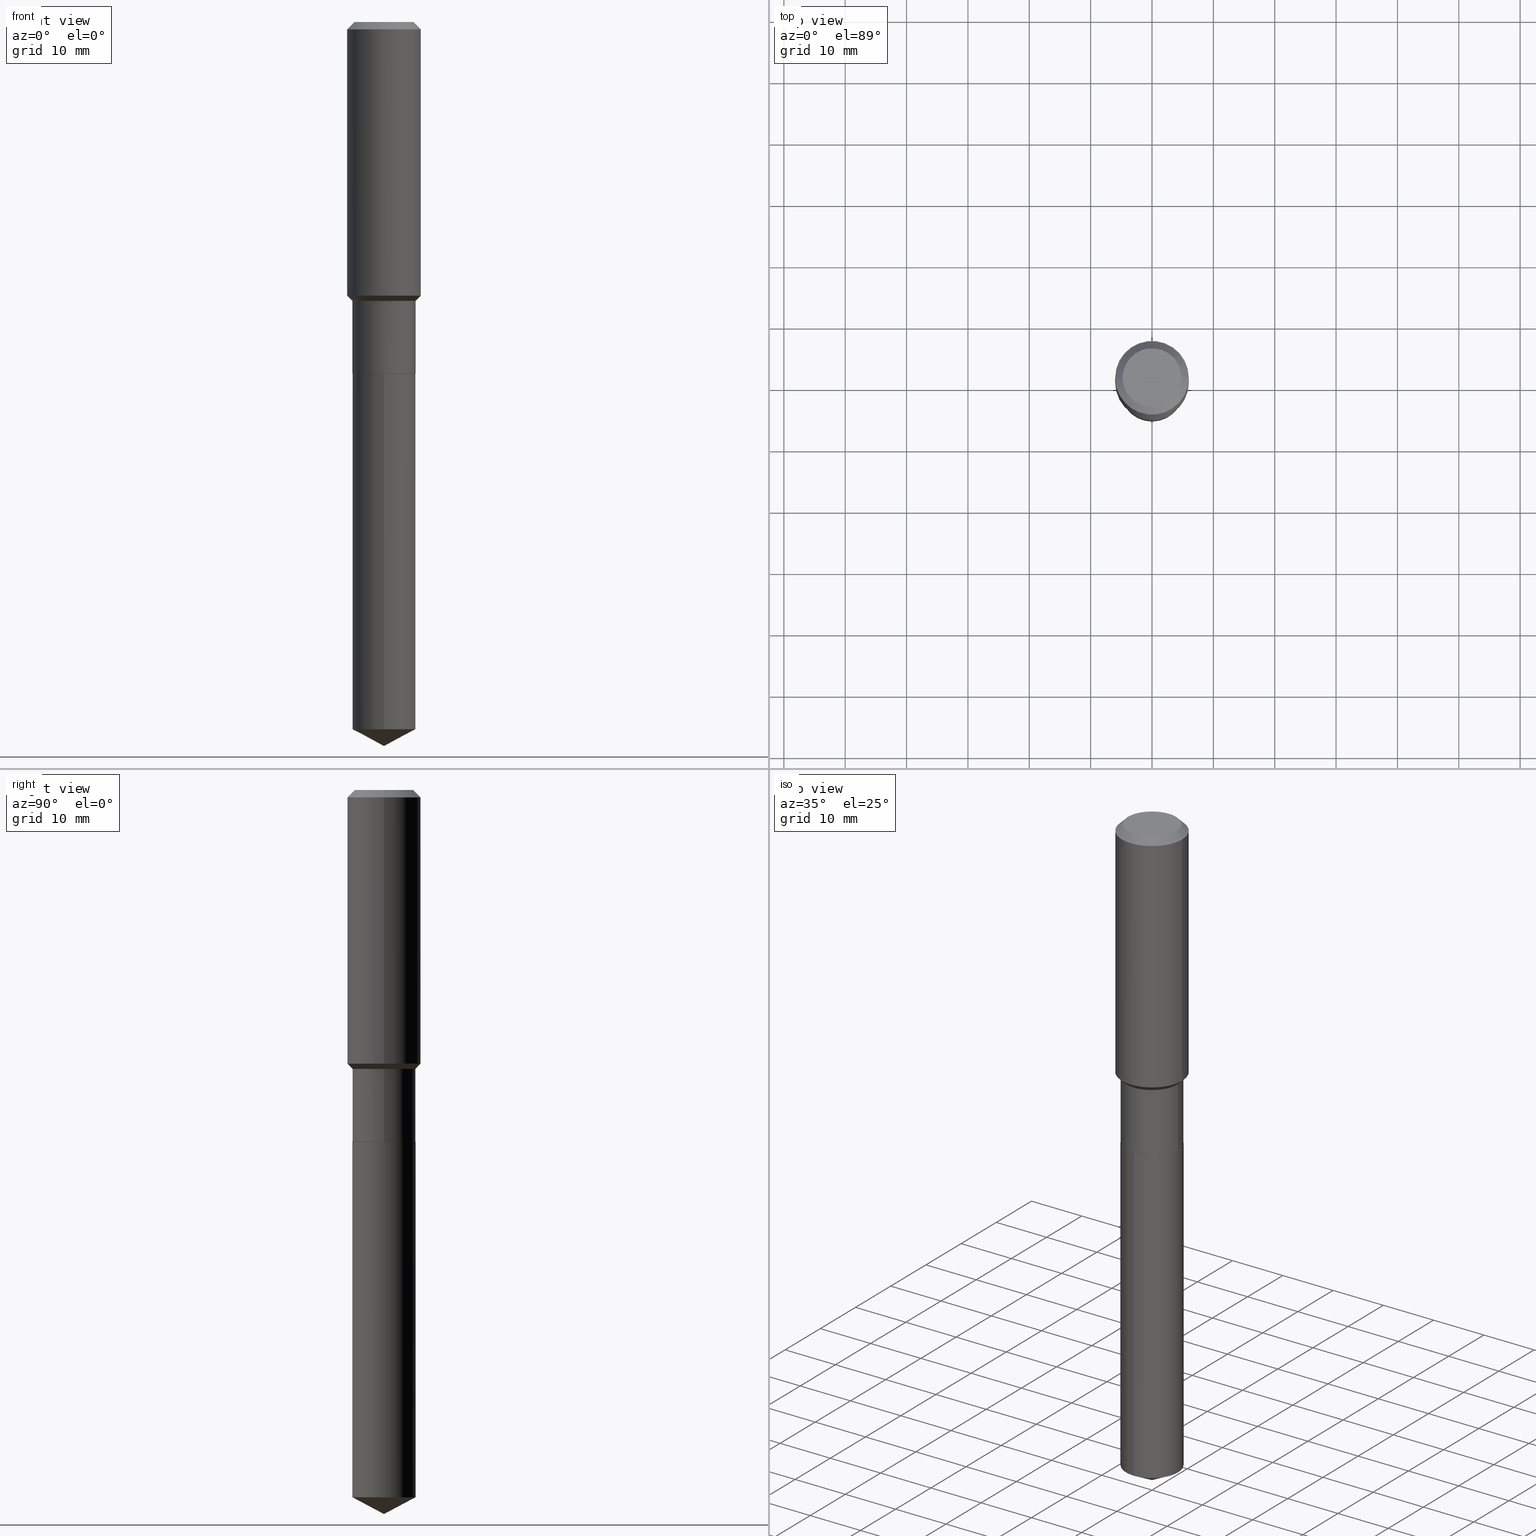
[diagram: canonical four-view strip — front | top / right | iso, engineering-drawing reading convention]
A machine part, canonical four-view strip (front | top / right | iso — engineering-drawing reading convention). The complete STEP part file that produces these views, byte-faithful:
ISO-10303-21;
HEADER;
FILE_DESCRIPTION (( 'STEP AP203' ),
    '1' );
FILE_NAME ('65233.STEP',
    '2024-04-24T21:44:24',
    ( '' ),
    ( '' ),
    'SwSTEP 2.0',
    'SolidWorks 2023',
    '' );
FILE_SCHEMA (( 'CONFIG_CONTROL_DESIGN' ));
ENDSEC;

DATA;
#1 = EDGE_LOOP ( 'NONE', ( #246, #147, #313, #77 ) ) ;
#2 = EDGE_CURVE ( 'NONE', #347, #46, #124, .T. ) ;
#3 = CONICAL_SURFACE ( 'NONE', #19, 74.04434902938398011, 1.082104136236488934 ) ;
#4 = ORIENTED_EDGE ( 'NONE', *, *, #379, .F. ) ;
#5 = DIRECTION ( 'NONE',  ( -0.7071067811865453523, 2.468850131082234184E-15, -0.7071067811865496822 ) ) ;
#6 = EDGE_CURVE ( 'NONE', #166, #67, #163, .T. ) ;
#7 = DIRECTION ( 'NONE',  ( -2.445468806185136877E-29, 3.491481338843145188E-15, 1.000000000000000000 ) ) ;
#8 = VECTOR ( 'NONE', #164, 39.37007874015748143 ) ;
#9 = ORIENTED_EDGE ( 'NONE', *, *, #414, .T. ) ;
#10 = APPROVAL_PERSON_ORGANIZATION ( #308, #320, #238 ) ;
#11 = EDGE_LOOP ( 'NONE', ( #423, #385, #206, #450 ) ) ;
#12 = DIRECTION ( 'NONE',  ( -2.445468806185136597E-29, 3.491481338843145583E-15, 1.000000000000000000 ) ) ;
#13 = CARTESIAN_POINT ( 'NONE',  ( 4.376410975548918967E-29, -6.248355003993691698E-15, -1.789599999999999413 ) ) ;
#14 = EDGE_CURVE ( 'NONE', #170, #46, #309, .T. ) ;
#15 = CARTESIAN_POINT ( 'NONE',  ( 1.440625396753714058E-15, 0.2027499999999921310, -2.255900000000000016 ) ) ;
#16 = DESIGN_CONTEXT ( 'detailed design', #471, 'design' ) ;
#17 = DIRECTION ( 'NONE',  ( -2.445468806185136597E-29, 3.491481338843145583E-15, 1.000000000000000000 ) ) ;
#18 = DIRECTION ( 'NONE',  ( -2.445450010346180053E-29, 3.491508255554324007E-15, 1.000000000000000000 ) ) ;
#19 = AXIS2_PLACEMENT_3D ( 'NONE', #138, #132, #250 ) ;
#20 = COORDINATED_UNIVERSAL_TIME_OFFSET ( 5, 0, .BEHIND. ) ;
#21 = DIRECTION ( 'NONE',  ( -2.445468806185136597E-29, 3.491481338843145583E-15, 1.000000000000000000 ) ) ;
#22 = DIRECTION ( 'NONE',  ( -6.165590087286842340E-15, -0.8829475928589273215, 0.4694715627858898066 ) ) ;
#23 = APPROVAL_DATE_TIME ( #409, #118 ) ;
#24 = FACE_OUTER_BOUND ( 'NONE', #276, .T. ) ;
#25 = CARTESIAN_POINT ( 'NONE',  ( 0.2027499999999999858, -1.415795682900890473E-15, 9.886448412926258951E-30 ) ) ;
#26 = CALENDAR_DATE ( 2024, 24, 4 ) ;
#27 = DIRECTION ( 'NONE',  ( 1.000000000000000000, -6.982962677686266711E-15, 4.876176775795935793E-29 ) ) ;
#28 = PERSON_AND_ORGANIZATION ( #358, #221 ) ;
#29 = CC_DESIGN_DATE_AND_TIME_ASSIGNMENT ( #448, #222, ( #474 ) ) ;
#30 = AXIS2_PLACEMENT_3D ( 'NONE', #85, #257, #251 ) ;
#31 = EDGE_CURVE ( 'NONE', #212, #46, #41, .T. ) ;
#32 = ORIENTED_EDGE ( 'NONE', *, *, #233, .T. ) ;
#33 = AXIS2_PLACEMENT_3D ( 'NONE', #87, #398, #352 ) ;
#34 = AXIS2_PLACEMENT_3D ( 'NONE', #418, #229, #239 ) ;
#35 = DIRECTION ( 'NONE',  ( -2.445468806185136597E-29, 3.491481338843145583E-15, 1.000000000000000000 ) ) ;
#36 = EDGE_LOOP ( 'NONE', ( #149, #322, #284, #32 ) ) ;
#37 = CONICAL_SURFACE ( 'NONE', #333, 0.2361999999999999933, 0.7853981633974452814 ) ;
#38 = CIRCLE ( 'NONE', #116, 0.2027500000000000135 ) ;
#39 = ORIENTED_EDGE ( 'NONE', *, *, #14, .F. ) ;
#40 = EDGE_CURVE ( 'NONE', #424, #115, #460, .T. ) ;
#41 = LINE ( 'NONE', #126, #345 ) ;
#42 = ORIENTED_EDGE ( 'NONE', *, *, #184, .T. ) ;
#43 = ADVANCED_FACE ( 'NONE', ( #427 ), #389, .F. ) ;
#44 = EDGE_LOOP ( 'NONE', ( #242, #175 ) ) ;
#45 = AXIS2_PLACEMENT_3D ( 'NONE', #477, #473, #215 ) ;
#46 = VERTEX_POINT ( 'NONE', #96 ) ;
#47 = CIRCLE ( 'NONE', #407, 0.2362000000000002153 ) ;
#48 = LINE ( 'NONE', #100, #191 ) ;
#49 = DIRECTION ( 'NONE',  ( -2.445450010346180053E-29, 3.491508255554324007E-15, 1.000000000000000000 ) ) ;
#50 = ORIENTED_EDGE ( 'NONE', *, *, #114, .F. ) ;
#51 = CARTESIAN_POINT ( 'NONE',  ( 0.1889600000000000168, -1.540873453589747738E-15, 3.855188123725863225E-18 ) ) ;
#52 = DIRECTION ( 'NONE',  ( 1.000000000000000000, -6.982962677686266711E-15, 0.000000000000000000 ) ) ;
#53 = LENGTH_MEASURE_WITH_UNIT ( LENGTH_MEASURE( 0.02539999999999999897 ), #168 );
#54 = CARTESIAN_POINT ( 'NONE',  ( 5.516733079873047692E-29, -7.876432752296249824E-15, -2.255899999999999128 ) ) ;
#55 = CIRCLE ( 'NONE', #444, 0.2022500000000000131 ) ;
#56 = VECTOR ( 'NONE', #63, 39.37007874015748143 ) ;
#57 = COORDINATED_UNIVERSAL_TIME_OFFSET ( 5, 0, .BEHIND. ) ;
#58 = DIRECTION ( 'NONE',  ( -2.445450010346180333E-29, 3.491508255554324402E-15, 1.000000000000000000 ) ) ;
#59 = DIRECTION ( 'NONE',  ( 1.000000000000000000, -6.982962677686268288E-15, 0.000000000000000000 ) ) ;
#60 = ADVANCED_FACE ( 'NONE', ( #188 ), #103, .T. ) ;
#61 = DIRECTION ( 'NONE',  ( -2.445468806185136597E-29, 3.491481338843145583E-15, 1.000000000000000000 ) ) ;
#62 = LINE ( 'NONE', #336, #487 ) ;
#63 = DIRECTION ( 'NONE',  ( 0.7071067811865453523, -7.319954787623248157E-15, -0.7071067811865496822 ) ) ;
#64 = AXIS2_PLACEMENT_3D ( 'NONE', #411, #61, #27 ) ;
#65 = CIRCLE ( 'NONE', #422, 0.2027500000000000135 ) ;
#66 = EDGE_CURVE ( 'NONE', #280, #311, #144, .T. ) ;
#67 = VERTEX_POINT ( 'NONE', #412 ) ;
#68 = SHAPE_DEFINITION_REPRESENTATION ( #396, #304 ) ;
#69 = CARTESIAN_POINT ( 'NONE',  ( 0.2361999999999999933, -1.785387205520586782E-15, -0.04724000000000028177 ) ) ;
#70 = FACE_OUTER_BOUND ( 'NONE', #36, .T. ) ;
#71 = ORIENTED_EDGE ( 'NONE', *, *, #269, .F. ) ;
#72 = DIRECTION ( 'NONE',  ( -6.982962677686265922E-15, -1.000000000000000000, 4.042191852524186848E-15 ) ) ;
#73 = ORIENTED_EDGE ( 'NONE', *, *, #376, .T. ) ;
#74 = PERSON_AND_ORGANIZATION ( #358, #221 ) ;
#75 = ORIENTED_EDGE ( 'NONE', *, *, #414, .F. ) ;
#76 = EDGE_CURVE ( 'NONE', #121, #170, #62, .T. ) ;
#77 = ORIENTED_EDGE ( 'NONE', *, *, #31, .F. ) ;
#78 = MANIFOLD_SOLID_BREP ( 'Body-Move/Copy2[2]', #260 ) ;
#79 = CARTESIAN_POINT ( 'NONE',  ( 1.155239464041865506E-30, -1.649375784469511859E-16, -0.04724000000000028177 ) ) ;
#80 = VERTEX_POINT ( 'NONE', #377 ) ;
#81 = DIRECTION ( 'NONE',  ( -2.445468806185136597E-29, 3.491481338843145583E-15, 1.000000000000000000 ) ) ;
#82 = EDGE_LOOP ( 'NONE', ( #321, #270, #83, #490 ) ) ;
#83 = ORIENTED_EDGE ( 'NONE', *, *, #184, .F. ) ;
#84 = FACE_OUTER_BOUND ( 'NONE', #107, .T. ) ;
#85 = CARTESIAN_POINT ( 'NONE',  ( 5.516733079873047692E-29, -7.876432752296249824E-15, -2.255899999999999128 ) ) ;
#86 = CIRCLE ( 'NONE', #360, 0.1889600000000000168 ) ;
#87 = CARTESIAN_POINT ( 'NONE',  ( -4.713871149261273121E-47, 6.730158695841826722E-33, 1.927594061857931128E-18 ) ) ;
#88 =( GEOMETRIC_REPRESENTATION_CONTEXT ( 3 ) GLOBAL_UNCERTAINTY_ASSIGNED_CONTEXT ( ( #216 ) ) GLOBAL_UNIT_ASSIGNED_CONTEXT ( ( #478, #458, #122 ) ) REPRESENTATION_CONTEXT ( 'NONE', 'WORKASPACE' ) );
#89 = PERSON_AND_ORGANIZATION ( #358, #221 ) ;
#90 = CARTESIAN_POINT ( 'NONE',  ( -9.427742298522546243E-47, 1.346031739168365344E-32, 3.855188123715862256E-18 ) ) ;
#91 = EDGE_CURVE ( 'NONE', #307, #347, #380, .T. ) ;
#92 = LINE ( 'NONE', #25, #190 ) ;
#93 = DIRECTION ( 'NONE',  ( -2.445468806185136597E-29, 3.491481338843145583E-15, 1.000000000000000000 ) ) ;
#94 = ADVANCED_FACE ( 'NONE', ( #70 ), #203, .T. ) ;
#95 = CARTESIAN_POINT ( 'NONE',  ( 5.516733079873047692E-29, -7.876432752296249824E-15, -2.255899999999999128 ) ) ;
#96 = CARTESIAN_POINT ( 'NONE',  ( -0.2361999999999999933, -1.469949323962811871E-15, -0.04724000000000028177 ) ) ;
#97 = VECTOR ( 'NONE', #302, 39.37007874015748143 ) ;
#98 = APPROVAL_PERSON_ORGANIZATION ( #365, #118, #140 ) ;
#99 = CALENDAR_DATE ( 2024, 24, 4 ) ;
#100 = CARTESIAN_POINT ( 'NONE',  ( 1.440625396753658049E-15, 0.2027499999999921310, -2.255900000000000016 ) ) ;
#101 = CYLINDRICAL_SURFACE ( 'NONE', #64, 0.2027499999999999858 ) ;
#102 = CC_DESIGN_PERSON_AND_ORGANIZATION_ASSIGNMENT ( #225, #287, ( #474 ) ) ;
#103 = CYLINDRICAL_SURFACE ( 'NONE', #323, 0.2362000000000001043 ) ;
#104 = APPROVAL_STATUS ( 'not_yet_approved' ) ;
#105 = LINE ( 'NONE', #69, #56 ) ;
#106 = ORIENTED_EDGE ( 'NONE', *, *, #343, .T. ) ;
#107 = EDGE_LOOP ( 'NONE', ( #202, #249, #171, #161 ) ) ;
#108 = CC_DESIGN_PERSON_AND_ORGANIZATION_ASSIGNMENT ( #89, #182, ( #150 ) ) ;
#109 = CIRCLE ( 'NONE', #45, 0.2027500000000000135 ) ;
#110 = DATE_AND_TIME ( #314, #301 ) ;
#111 = CIRCLE ( 'NONE', #243, 0.1889600000000000168 ) ;
#112 = EDGE_LOOP ( 'NONE', ( #154, #482, #39, #208 ) ) ;
#113 = APPROVAL_DATE_TIME ( #110, #320 ) ;
#114 = EDGE_CURVE ( 'NONE', #274, #115, #353, .T. ) ;
#115 = VERTEX_POINT ( 'NONE', #463 ) ;
#116 = AXIS2_PLACEMENT_3D ( 'NONE', #397, #18, #405 ) ;
#117 = DIRECTION ( 'NONE',  ( -0.7071067811865486830, 7.493145998870358893E-15, 0.7071067811865464625 ) ) ;
#118 = APPROVAL ( #135, 'UNSPECIFIED' ) ;
#119 = CARTESIAN_POINT ( 'NONE',  ( -0.2022500000000000131, -6.439360069221446908E-15, -2.255899999999999128 ) ) ;
#120 = EDGE_CURVE ( 'NONE', #67, #307, #359, .T. ) ;
#121 = VERTEX_POINT ( 'NONE', #125 ) ;
#122 =( NAMED_UNIT ( * ) SI_UNIT ( $, .STERADIAN. ) SOLID_ANGLE_UNIT ( ) );
#123 = AXIS2_PLACEMENT_3D ( 'NONE', #338, #256, #209 ) ;
#124 = LINE ( 'NONE', #327, #317 ) ;
#125 = CARTESIAN_POINT ( 'NONE',  ( 0.2362000000000002153, -7.780940737678886085E-15, -1.756149999999999212 ) ) ;
#126 = CARTESIAN_POINT ( 'NONE',  ( -0.2361999999999999933, 1.484438206022545019E-15, -0.04724000000000028177 ) ) ;
#127 = DIRECTION ( 'NONE',  ( -6.982962677686265922E-15, -1.000000000000000000, 4.042191852524186848E-15 ) ) ;
#128 = FACE_OUTER_BOUND ( 'NONE', #381, .T. ) ;
#129 = EDGE_CURVE ( 'NONE', #212, #485, #86, .T. ) ;
#130 = ORIENTED_EDGE ( 'NONE', *, *, #40, .F. ) ;
#131 = DATE_AND_TIME ( #185, #165 ) ;
#132 = DIRECTION ( 'NONE',  ( -2.445450010346180053E-29, 3.491508255554324007E-15, 1.000000000000000000 ) ) ;
#133 = DIRECTION ( 'NONE',  ( 6.982962677686265922E-15, 1.000000000000000000, -3.491508255554324402E-15 ) ) ;
#134 = AXIS2_PLACEMENT_3D ( 'NONE', #198, #312, #72 ) ;
#135 = APPROVAL_STATUS ( 'not_yet_approved' ) ;
#136 = CARTESIAN_POINT ( 'NONE',  ( -1.415795682900779441E-15, -0.2027500000000158065, -4.537895912730635750 ) ) ;
#137 = FACE_OUTER_BOUND ( 'NONE', #82, .T. ) ;
#138 = CARTESIAN_POINT ( 'NONE',  ( -8.491668994784968079E-28, 1.212405157616636427E-13, 34.72437874015748349 ) ) ;
#139 = FACE_OUTER_BOUND ( 'NONE', #457, .T. ) ;
#140 = APPROVAL_ROLE ( '' ) ;
#141 = CARTESIAN_POINT ( 'NONE',  ( 5.516733079873047692E-29, -7.876432752296249824E-15, -2.255899999999999128 ) ) ;
#142 = CC_DESIGN_PERSON_AND_ORGANIZATION_ASSIGNMENT ( #28, #466, ( #303 ) ) ;
#143 = DIRECTION ( 'NONE',  ( -2.438088387897960049E-29, 3.491481338843145188E-15, 1.000000000000000000 ) ) ;
#144 = LINE ( 'NONE', #179, #97 ) ;
#145 = AXIS2_PLACEMENT_3D ( 'NONE', #366, #265, #177 ) ;
#146 = LOCAL_TIME ( 17, 44, 24.00000000000000000, #293 ) ;
#147 = ORIENTED_EDGE ( 'NONE', *, *, #316, .T. ) ;
#148 = ADVANCED_FACE ( 'NONE', ( #160 ), #37, .T. ) ;
#149 = ORIENTED_EDGE ( 'NONE', *, *, #316, .F. ) ;
#150 = PRODUCT_DEFINITION_FORMATION_WITH_SPECIFIED_SOURCE ( 'ANY', '', #303, .NOT_KNOWN. ) ;
#151 = SECURITY_CLASSIFICATION_LEVEL ( 'unclassified' ) ;
#152 = CARTESIAN_POINT ( 'NONE',  ( 0.2027500000000000135, -9.290482694527719779E-15, -2.255399999999999405 ) ) ;
#153 = CARTESIAN_POINT ( 'NONE',  ( 1.155239464041865506E-30, -1.649375784469511859E-16, -0.04724000000000028177 ) ) ;
#154 = ORIENTED_EDGE ( 'NONE', *, *, #404, .T. ) ;
#155 = COORDINATED_UNIVERSAL_TIME_OFFSET ( 5, 0, .BEHIND. ) ;
#156 = CARTESIAN_POINT ( 'NONE',  ( 4.376410975548918967E-29, -6.248355003993691698E-15, -1.789599999999999413 ) ) ;
#157 = ORIENTED_EDGE ( 'NONE', *, *, #6, .F. ) ;
#158 = CIRCLE ( 'NONE', #455, 0.2361999999999999933 ) ;
#159 = LOCAL_TIME ( 17, 44, 24.00000000000000000, #155 ) ;
#160 = FACE_OUTER_BOUND ( 'NONE', #1, .T. ) ;
#161 = ORIENTED_EDGE ( 'NONE', *, *, #205, .F. ) ;
#162 = APPLICATION_CONTEXT ( 'configuration controlled 3d designs of mechanical parts and assemblies' ) ;
#163 = LINE ( 'NONE', #119, #415 ) ;
#164 = DIRECTION ( 'NONE',  ( -2.445450010346180333E-29, 3.491508255554324402E-15, 1.000000000000000000 ) ) ;
#165 = LOCAL_TIME ( 17, 44, 24.00000000000000000, #20 ) ;
#166 = VERTEX_POINT ( 'NONE', #373 ) ;
#167 = ORIENTED_EDGE ( 'NONE', *, *, #2, .F. ) ;
#168 =( LENGTH_UNIT ( ) NAMED_UNIT ( * ) SI_UNIT ( $, .METRE. ) );
#169 = EDGE_CURVE ( 'NONE', #280, #166, #235, .T. ) ;
#170 = VERTEX_POINT ( 'NONE', #183 ) ;
#171 = ORIENTED_EDGE ( 'NONE', *, *, #227, .T. ) ;
#172 = DIRECTION ( 'NONE',  ( -2.445468806185136597E-29, 3.491481338843145583E-15, 1.000000000000000000 ) ) ;
#173 = CC_DESIGN_PERSON_AND_ORGANIZATION_ASSIGNMENT ( #74, #197, ( #446 ) ) ;
#174 = PLANE ( 'NONE',  #273 ) ;
#175 = ORIENTED_EDGE ( 'NONE', *, *, #483, .T. ) ;
#176 = CYLINDRICAL_SURFACE ( 'NONE', #461, 0.2027499999999999858 ) ;
#177 = DIRECTION ( 'NONE',  ( 1.000000000000000000, -6.982962677686268288E-15, 0.000000000000000000 ) ) ;
#178 = AXIS2_PLACEMENT_3D ( 'NONE', #479, #369, #298 ) ;
#179 = CARTESIAN_POINT ( 'NONE',  ( 0.2022500000000000131, -9.288736953858297487E-15, -2.255899999999999128 ) ) ;
#180 = AXIS2_PLACEMENT_3D ( 'NONE', #13, #12, #219 ) ;
#181 = EDGE_CURVE ( 'NONE', #166, #280, #55, .T. ) ;
#182 = PERSON_AND_ORGANIZATION_ROLE ( 'creator' ) ;
#183 = CARTESIAN_POINT ( 'NONE',  ( 0.2361999999999999933, -1.814313362916447440E-15, -0.04724000000000028177 ) ) ;
#184 = EDGE_CURVE ( 'NONE', #311, #67, #420, .T. ) ;
#185 = CALENDAR_DATE ( 2024, 24, 4 ) ;
#186 = DIRECTION ( 'NONE',  ( 1.000000000000000000, -6.982962677686266711E-15, 0.000000000000000000 ) ) ;
#187 = DIRECTION ( 'NONE',  ( -2.445468806185136877E-29, 3.491481338843145188E-15, 1.000000000000000000 ) ) ;
#188 = FACE_OUTER_BOUND ( 'NONE', #394, .T. ) ;
#189 = DIRECTION ( 'NONE',  ( -2.445468806185136597E-29, 3.491481338843145583E-15, 1.000000000000000000 ) ) ;
#190 = VECTOR ( 'NONE', #187, 39.37007874015748143 ) ;
#191 = VECTOR ( 'NONE', #58, 39.37007874015748143 ) ;
#192 = DIRECTION ( 'NONE',  ( 0.000000000000000000, 0.000000000000000000, 1.000000000000000000 ) ) ;
#193 = EDGE_CURVE ( 'NONE', #80, #424, #226, .T. ) ;
#194 = ORIENTED_EDGE ( 'NONE', *, *, #269, .T. ) ;
#195 = DATE_TIME_ROLE ( 'classification_date' ) ;
#196 = VECTOR ( 'NONE', #400, 39.37007874015748143 ) ;
#197 = PERSON_AND_ORGANIZATION_ROLE ( 'classification_officer' ) ;
#198 = CARTESIAN_POINT ( 'NONE',  ( 5.516733079873047692E-29, -7.876432752296249824E-15, -2.255899999999999128 ) ) ;
#199 = ORIENTED_EDGE ( 'NONE', *, *, #40, .T. ) ;
#200 = EDGE_CURVE ( 'NONE', #67, #311, #109, .T. ) ;
#201 = CARTESIAN_POINT ( 'NONE',  ( -0.2027499999999999858, 1.440625396753603026E-15, -9.973140895491819537E-30 ) ) ;
#202 = ORIENTED_EDGE ( 'NONE', *, *, #120, .F. ) ;
#203 = CONICAL_SURFACE ( 'NONE', #278, 0.2361999999999999933, 0.7853981633974452814 ) ;
#204 = AXIS2_PLACEMENT_3D ( 'NONE', #361, #172, #253 ) ;
#205 = EDGE_CURVE ( 'NONE', #307, #433, #386, .T. ) ;
#206 = ORIENTED_EDGE ( 'NONE', *, *, #379, .T. ) ;
#207 = ADVANCED_FACE ( 'NONE', ( #137 ), #341, .T. ) ;
#208 = ORIENTED_EDGE ( 'NONE', *, *, #76, .F. ) ;
#209 = DIRECTION ( 'NONE',  ( 1.000000000000000000, -6.982962677686266711E-15, 4.876176775795935793E-29 ) ) ;
#210 = VECTOR ( 'NONE', #117, 39.37007874015748143 ) ;
#211 = CONICAL_SURFACE ( 'NONE', #34, 0.2022500000000000131, 0.7853981633975507526 ) ;
#212 = VERTEX_POINT ( 'NONE', #224 ) ;
#213 = ADVANCED_FACE ( 'NONE', ( #128 ), #438, .F. ) ;
#214 = CARTESIAN_POINT ( 'NONE',  ( -0.2362000000000002153, -4.453263011344030010E-15, -1.756149999999999212 ) ) ;
#215 = DIRECTION ( 'NONE',  ( 1.000000000000000000, -6.982962677686266711E-15, 0.000000000000000000 ) ) ;
#216 = UNCERTAINTY_MEASURE_WITH_UNIT (LENGTH_MEASURE( 1.000000000000000082E-05 ), #478, 'distance_accuracy_value', 'NONE');
#217 = ORIENTED_EDGE ( 'NONE', *, *, #181, .T. ) ;
#218 = DIRECTION ( 'NONE',  ( 1.000000000000000000, -6.982962677686266711E-15, 4.876176775795935793E-29 ) ) ;
#219 = DIRECTION ( 'NONE',  ( 1.000000000000000000, -6.982962677686269866E-15, 0.000000000000000000 ) ) ;
#220 = CARTESIAN_POINT ( 'NONE',  ( 1.109724000827012398E-28, -1.584404032073649329E-14, -4.537895912730635750 ) ) ;
#221 = ORGANIZATION ( 'UNSPECIFIED', 'UNSPECIFIED', '' ) ;
#222 = DATE_TIME_ROLE ( 'creation_date' ) ;
#223 = DIRECTION ( 'NONE',  ( -2.445450010346180053E-29, 3.491508255554324007E-15, 1.000000000000000000 ) ) ;
#224 = CARTESIAN_POINT ( 'NONE',  ( -0.1889600000000000168, 1.401969416799070942E-15, 3.855188123706346622E-18 ) ) ;
#225 = PERSON_AND_ORGANIZATION ( #358, #221 ) ;
#226 = LINE ( 'NONE', #401, #272 ) ;
#227 = EDGE_CURVE ( 'NONE', #311, #433, #92, .T. ) ;
#228 = APPLICATION_PROTOCOL_DEFINITION ( 'international standard', 'config_control_design', 1994, #162 ) ;
#229 = DIRECTION ( 'NONE',  ( -2.445468806185136597E-29, 3.491481338843145583E-15, 1.000000000000000000 ) ) ;
#230 = VECTOR ( 'NONE', #7, 39.37007874015748143 ) ;
#231 = CALENDAR_DATE ( 2024, 24, 4 ) ;
#232 = FACE_OUTER_BOUND ( 'NONE', #451, .T. ) ;
#233 = EDGE_CURVE ( 'NONE', #46, #170, #158, .T. ) ;
#234 = ORIENTED_EDGE ( 'NONE', *, *, #275, .F. ) ;
#235 = CIRCLE ( 'NONE', #145, 0.2022500000000000131 ) ;
#236 = DIRECTION ( 'NONE',  ( -2.445468806185136877E-29, 3.491481338843145188E-15, 1.000000000000000000 ) ) ;
#237 = EDGE_LOOP ( 'NONE', ( #413, #268, #234 ) ) ;
#238 = APPROVAL_ROLE ( '' ) ;
#239 = DIRECTION ( 'NONE',  ( 1.000000000000000000, -6.982962677686268288E-15, 0.000000000000000000 ) ) ;
#240 = CARTESIAN_POINT ( 'NONE',  ( 1.155239464041865506E-30, -1.649375784469511859E-16, -0.04724000000000028177 ) ) ;
#241 = ADVANCED_FACE ( 'NONE', ( #139 ), #101, .T. ) ;
#242 = ORIENTED_EDGE ( 'NONE', *, *, #129, .T. ) ;
#243 = AXIS2_PLACEMENT_3D ( 'NONE', #90, #21, #329 ) ;
#244 = DIRECTION ( 'NONE',  ( 1.000000000000000000, -6.982962677686266711E-15, 0.000000000000000000 ) ) ;
#245 = ADVANCED_FACE ( 'NONE', ( #342 ), #432, .T. ) ;
#246 = ORIENTED_EDGE ( 'NONE', *, *, #483, .F. ) ;
#247 = DIRECTION ( 'NONE',  ( 1.000000000000000000, -6.982962677686266711E-15, 4.876185090822587894E-29 ) ) ;
#248 = CARTESIAN_POINT ( 'NONE',  ( -1.415795682900835253E-15, -0.2027500000000078961, -2.255899999999998684 ) ) ;
#249 = ORIENTED_EDGE ( 'NONE', *, *, #200, .T. ) ;
#250 = DIRECTION ( 'NONE',  ( -6.982962677686265133E-15, -1.000000000000000000, 3.541896320645539569E-15 ) ) ;
#251 = DIRECTION ( 'NONE',  ( -6.982962677686265922E-15, -1.000000000000000000, 4.042191852524186848E-15 ) ) ;
#252 = MANIFOLD_SOLID_BREP ( 'Body-Move/Copy2[1]', #266 ) ;
#253 = DIRECTION ( 'NONE',  ( 1.000000000000000000, -6.982962677686269866E-15, 0.000000000000000000 ) ) ;
#254 = DIRECTION ( 'NONE',  ( -1.000000000000000000, 6.982962677686266711E-15, 0.000000000000000000 ) ) ;
#255 = PERSON_AND_ORGANIZATION ( #358, #221 ) ;
#256 = DIRECTION ( 'NONE',  ( -2.445468806185136597E-29, 3.491481338843145583E-15, 1.000000000000000000 ) ) ;
#257 = DIRECTION ( 'NONE',  ( -2.445450010346180053E-29, 3.491508255554324007E-15, 1.000000000000000000 ) ) ;
#258 = CARTESIAN_POINT ( 'NONE',  ( 0.000000000000000000, 0.000000000000000000, 0.000000000000000000 ) ) ;
#259 = CARTESIAN_POINT ( 'NONE',  ( 0.000000000000000000, 0.000000000000000000, 0.000000000000000000 ) ) ;
#260 = CLOSED_SHELL ( 'NONE', ( #207, #148, #391, #292, #241, #363, #440, #60, #94, #43, #213, #331 ) ) ;
#261 = DIRECTION ( 'NONE',  ( -2.445468806185136597E-29, 3.491481338843145583E-15, 1.000000000000000000 ) ) ;
#262 = LOCAL_TIME ( 17, 44, 24.00000000000000000, #57 ) ;
#263 = MECHANICAL_CONTEXT ( 'NONE', #162, 'mechanical' ) ;
#264 = DIRECTION ( 'NONE',  ( 1.000000000000000000, -6.982962677686266711E-15, 4.876176775795935793E-29 ) ) ;
#265 = DIRECTION ( 'NONE',  ( -2.445468806185136597E-29, 3.491481338843145583E-15, 1.000000000000000000 ) ) ;
#266 = CLOSED_SHELL ( 'NONE', ( #469, #384, #421, #245, #279 ) ) ;
#267 = CIRCLE ( 'NONE', #204, 0.2027499999999999303 ) ;
#268 = ORIENTED_EDGE ( 'NONE', *, *, #462, .T. ) ;
#269 = EDGE_CURVE ( 'NONE', #349, #424, #38, .T. ) ;
#270 = ORIENTED_EDGE ( 'NONE', *, *, #6, .T. ) ;
#271 = ORIENTED_EDGE ( 'NONE', *, *, #200, .F. ) ;
#272 = VECTOR ( 'NONE', #22, 39.37007874015748143 ) ;
#273 = AXIS2_PLACEMENT_3D ( 'NONE', #330, #468, #133 ) ;
#274 = VERTEX_POINT ( 'NONE', #15 ) ;
#275 = EDGE_CURVE ( 'NONE', #424, #349, #65, .T. ) ;
#276 = EDGE_LOOP ( 'NONE', ( #428, #383, #71 ) ) ;
#277 = DIRECTION ( 'NONE',  ( -0.7071067811866199593, 7.493145998870616062E-15, 0.7071067811864750752 ) ) ;
#278 = AXIS2_PLACEMENT_3D ( 'NONE', #153, #346, #449 ) ;
#279 = ADVANCED_FACE ( 'NONE', ( #339 ), #174, .F. ) ;
#280 = VERTEX_POINT ( 'NONE', #291 ) ;
#281 = ORIENTED_EDGE ( 'NONE', *, *, #233, .F. ) ;
#282 = CARTESIAN_POINT ( 'NONE',  ( -9.427742298522546243E-47, 1.346031739168365344E-32, 3.855188123715862256E-18 ) ) ;
#283 = ORIENTED_EDGE ( 'NONE', *, *, #376, .F. ) ;
#284 = ORIENTED_EDGE ( 'NONE', *, *, #31, .T. ) ;
#285 = CARTESIAN_POINT ( 'NONE',  ( -8.491668994784968079E-28, 1.212405157616636427E-13, 34.72437874015748349 ) ) ;
#286 = CARTESIAN_POINT ( 'NONE',  ( 5.516733079873047692E-29, -7.876432752296249824E-15, -2.255899999999999128 ) ) ;
#287 = PERSON_AND_ORGANIZATION_ROLE ( 'creator' ) ;
#288 = ORIENTED_EDGE ( 'NONE', *, *, #120, .T. ) ;
#289 = CARTESIAN_POINT ( 'NONE',  ( 4.294610043982025794E-29, -6.131564953209387982E-15, -1.756149999999999212 ) ) ;
#290 = AXIS2_PLACEMENT_3D ( 'NONE', #258, #192, #370 ) ;
#291 = CARTESIAN_POINT ( 'NONE',  ( 0.2022500000000000131, -9.288736953858297487E-15, -2.255899999999999128 ) ) ;
#292 = ADVANCED_FACE ( 'NONE', ( #344 ), #416, .T. ) ;
#293 = COORDINATED_UNIVERSAL_TIME_OFFSET ( 5, 0, .BEHIND. ) ;
#294 = CARTESIAN_POINT ( 'NONE',  ( 5.516733079873047692E-29, -7.876432752296249824E-15, -2.255899999999999128 ) ) ;
#295 = DIRECTION ( 'NONE',  ( 1.000000000000000000, -6.982962677686268288E-15, 0.000000000000000000 ) ) ;
#296 = APPLICATION_PROTOCOL_DEFINITION ( 'international standard', 'config_control_design', 1994, #471 ) ;
#297 = CARTESIAN_POINT ( 'NONE',  ( 0.2027499999999999303, -7.664150686894582368E-15, -1.789599999999999413 ) ) ;
#298 = DIRECTION ( 'NONE',  ( 1.000000000000000000, -6.982962677686269866E-15, 0.000000000000000000 ) ) ;
#299 = FACE_OUTER_BOUND ( 'NONE', #465, .T. ) ;
#300 = CARTESIAN_POINT ( 'NONE',  ( 1.155239464041865506E-30, -1.649375784469511859E-16, -0.04724000000000028177 ) ) ;
#301 = LOCAL_TIME ( 17, 44, 24.00000000000000000, #348 ) ;
#302 = DIRECTION ( 'NONE',  ( 0.7071067811866199593, -2.468850131083015945E-15, 0.7071067811864750752 ) ) ;
#303 = PRODUCT ( '65233', '65233', '', ( #263 ) ) ;
#304 = ADVANCED_BREP_SHAPE_REPRESENTATION ( '65233', ( #252, #78, #290 ), #88 ) ;
#305 = CC_DESIGN_DATE_AND_TIME_ASSIGNMENT ( #375, #195, ( #446 ) ) ;
#306 = CARTESIAN_POINT ( 'NONE',  ( -0.2027499999999999303, -4.807729607240088672E-15, -1.789599999999999413 ) ) ;
#307 = VERTEX_POINT ( 'NONE', #453 ) ;
#308 = PERSON_AND_ORGANIZATION ( #358, #221 ) ;
#309 = CIRCLE ( 'NONE', #459, 0.2361999999999999933 ) ;
#310 = CONICAL_SURFACE ( 'NONE', #180, 0.2027499999999999303, 0.7853981633974498333 ) ;
#311 = VERTEX_POINT ( 'NONE', #152 ) ;
#312 = DIRECTION ( 'NONE',  ( -2.445450010346180053E-29, 3.491508255554324007E-15, 1.000000000000000000 ) ) ;
#313 = ORIENTED_EDGE ( 'NONE', *, *, #14, .T. ) ;
#314 = CALENDAR_DATE ( 2024, 24, 4 ) ;
#315 = ORIENTED_EDGE ( 'NONE', *, *, #181, .F. ) ;
#316 = EDGE_CURVE ( 'NONE', #485, #170, #105, .T. ) ;
#317 = VECTOR ( 'NONE', #388, 39.37007874015748143 ) ;
#318 = AXIS2_PLACEMENT_3D ( 'NONE', #289, #17, #186 ) ;
#319 = DIRECTION ( 'NONE',  ( 2.445468806185136597E-29, -3.491481338843145583E-15, -1.000000000000000000 ) ) ;
#320 = APPROVAL ( #486, 'UNSPECIFIED' ) ;
#321 = ORIENTED_EDGE ( 'NONE', *, *, #169, .T. ) ;
#322 = ORIENTED_EDGE ( 'NONE', *, *, #129, .F. ) ;
#323 = AXIS2_PLACEMENT_3D ( 'NONE', #439, #340, #218 ) ;
#324 = AXIS2_PLACEMENT_3D ( 'NONE', #294, #476, #403 ) ;
#325 = DIRECTION ( 'NONE',  ( -2.445468806185136597E-29, 3.491481338843145583E-15, 1.000000000000000000 ) ) ;
#326 = DIRECTION ( 'NONE',  ( 0.7071067811865486830, -2.468850131082268893E-15, 0.7071067811865464625 ) ) ;
#327 = CARTESIAN_POINT ( 'NONE',  ( -0.2362000000000001043, 1.678301941865357380E-15, -1.161852468318209317E-29 ) ) ;
#328 = ORIENTED_EDGE ( 'NONE', *, *, #275, .T. ) ;
#329 = DIRECTION ( 'NONE',  ( 1.000000000000000000, -6.982962677686266711E-15, 4.876185090822587894E-29 ) ) ;
#330 = CARTESIAN_POINT ( 'NONE',  ( 5.516733079873047692E-29, -7.876432752296249824E-15, -2.255899999999999128 ) ) ;
#331 = ADVANCED_FACE ( 'NONE', ( #232 ), #211, .T. ) ;
#332 = LINE ( 'NONE', #297, #393 ) ;
#333 = AXIS2_PLACEMENT_3D ( 'NONE', #240, #319, #254 ) ;
#334 = CIRCLE ( 'NONE', #318, 0.2362000000000002153 ) ;
#335 = CARTESIAN_POINT ( 'NONE',  ( 5.515510345469956011E-29, -7.874687011626829109E-15, -2.255399999999999405 ) ) ;
#336 = CARTESIAN_POINT ( 'NONE',  ( 0.2362000000000001043, -1.649375784469496920E-15, 1.151752954443000508E-29 ) ) ;
#337 = PERSON_AND_ORGANIZATION ( #358, #221 ) ;
#338 = CARTESIAN_POINT ( 'NONE',  ( 0.000000000000000000, 0.000000000000000000, 0.000000000000000000 ) ) ;
#339 = FACE_OUTER_BOUND ( 'NONE', #355, .T. ) ;
#340 = DIRECTION ( 'NONE',  ( -2.445468806185136597E-29, 3.491481338843145583E-15, 1.000000000000000000 ) ) ;
#341 = CONICAL_SURFACE ( 'NONE', #392, 0.2022500000000000131, 0.7853981633975507526 ) ;
#342 = FACE_OUTER_BOUND ( 'NONE', #390, .T. ) ;
#343 = EDGE_CURVE ( 'NONE', #349, #274, #48, .T. ) ;
#344 = FACE_OUTER_BOUND ( 'NONE', #350, .T. ) ;
#345 = VECTOR ( 'NONE', #5, 39.37007874015748143 ) ;
#346 = DIRECTION ( 'NONE',  ( 2.445468806185136597E-29, -3.491481338843145583E-15, -1.000000000000000000 ) ) ;
#347 = VERTEX_POINT ( 'NONE', #214 ) ;
#348 = COORDINATED_UNIVERSAL_TIME_OFFSET ( 5, 0, .BEHIND. ) ;
#349 = VERTEX_POINT ( 'NONE', #464 ) ;
#350 = EDGE_LOOP ( 'NONE', ( #9, #425, #454, #4 ) ) ;
#351 = APPROVAL ( #104, 'UNSPECIFIED' ) ;
#352 = DIRECTION ( 'NONE',  ( -1.000000000000000000, 6.982962677686265922E-15, -4.876176775795935793E-29 ) ) ;
#353 = CIRCLE ( 'NONE', #134, 0.2027500000000000135 ) ;
#354 = CC_DESIGN_SECURITY_CLASSIFICATION ( #446, ( #150 ) ) ;
#355 = EDGE_LOOP ( 'NONE', ( #73, #356 ) ) ;
#356 = ORIENTED_EDGE ( 'NONE', *, *, #114, .T. ) ;
#357 = EDGE_CURVE ( 'NONE', #347, #121, #334, .T. ) ;
#358 = PERSON ( 'UNSPECIFIED', 'UNSPECIFIED', 'UNSPECIFIED', ('UNSPECIFIED'), ('UNSPECIFIED'), ('UNSPECIFIED') ) ;
#359 = LINE ( 'NONE', #201, #230 ) ;
#360 = AXIS2_PLACEMENT_3D ( 'NONE', #282, #81, #247 ) ;
#361 = CARTESIAN_POINT ( 'NONE',  ( 4.376410975548918967E-29, -6.248355003993691698E-15, -1.789599999999999413 ) ) ;
#362 = FACE_OUTER_BOUND ( 'NONE', #11, .T. ) ;
#363 = ADVANCED_FACE ( 'NONE', ( #84 ), #176, .T. ) ;
#364 = DIRECTION ( 'NONE',  ( -6.982962677686265922E-15, -1.000000000000000000, 2.694794568349458162E-15 ) ) ;
#365 = PERSON_AND_ORGANIZATION ( #358, #221 ) ;
#366 = CARTESIAN_POINT ( 'NONE',  ( 5.516733079873047692E-29, -7.876432752296249824E-15, -2.255899999999999128 ) ) ;
#367 = CYLINDRICAL_SURFACE ( 'NONE', #324, 0.2027500000000000135 ) ;
#368 = AXIS2_PLACEMENT_3D ( 'NONE', #286, #143, #442 ) ;
#369 = DIRECTION ( 'NONE',  ( -2.445468806185136597E-29, 3.491481338843145583E-15, 1.000000000000000000 ) ) ;
#370 = DIRECTION ( 'NONE',  ( 1.000000000000000000, 0.000000000000000000, 0.000000000000000000 ) ) ;
#371 = DIRECTION ( 'NONE',  ( -2.445450010346180053E-29, 3.491508255554324007E-15, 1.000000000000000000 ) ) ;
#372 = DIRECTION ( 'NONE',  ( -2.445468806185136597E-29, 3.491481338843145583E-15, 1.000000000000000000 ) ) ;
#373 = CARTESIAN_POINT ( 'NONE',  ( -0.2022500000000000131, -6.436710842047335707E-15, -2.255899999999999128 ) ) ;
#374 = CC_DESIGN_APPROVAL ( #351, ( #150 ) ) ;
#375 = DATE_AND_TIME ( #231, #159 ) ;
#376 = EDGE_CURVE ( 'NONE', #115, #274, #488, .T. ) ;
#377 = CARTESIAN_POINT ( 'NONE',  ( 1.136082711306524799E-28, -1.622049990282872348E-14, -4.645699999999999719 ) ) ;
#378 = APPROVAL_PERSON_ORGANIZATION ( #255, #351, #402 ) ;
#379 = EDGE_CURVE ( 'NONE', #433, #121, #332, .T. ) ;
#380 = LINE ( 'NONE', #306, #210 ) ;
#381 = EDGE_LOOP ( 'NONE', ( #429, #315 ) ) ;
#382 = DIMENSIONAL_EXPONENTS ( 1.000000000000000000, 0.000000000000000000, 0.000000000000000000, 0.000000000000000000, 0.000000000000000000, 0.000000000000000000, 0.000000000000000000 ) ;
#383 = ORIENTED_EDGE ( 'NONE', *, *, #193, .T. ) ;
#384 = ADVANCED_FACE ( 'NONE', ( #445 ), #456, .T. ) ;
#385 = ORIENTED_EDGE ( 'NONE', *, *, #205, .T. ) ;
#386 = CIRCLE ( 'NONE', #178, 0.2027499999999999303 ) ;
#387 = AXIS2_PLACEMENT_3D ( 'NONE', #156, #35, #417 ) ;
#388 = DIRECTION ( 'NONE',  ( -2.445468806185136877E-29, 3.491481338843145188E-15, 1.000000000000000000 ) ) ;
#389 = PLANE ( 'NONE',  #33 ) ;
#390 = EDGE_LOOP ( 'NONE', ( #489, #194, #199, #50 ) ) ;
#391 = ADVANCED_FACE ( 'NONE', ( #431 ), #472, .T. ) ;
#392 = AXIS2_PLACEMENT_3D ( 'NONE', #95, #372, #59 ) ;
#393 = VECTOR ( 'NONE', #326, 39.37007874015748143 ) ;
#394 = EDGE_LOOP ( 'NONE', ( #167, #436, #430, #281 ) ) ;
#395 = LINE ( 'NONE', #441, #196 ) ;
#396 = PRODUCT_DEFINITION_SHAPE ( 'NONE', 'NONE',  #474 ) ;
#397 = CARTESIAN_POINT ( 'NONE',  ( 1.109724000827012398E-28, -1.584404032073649329E-14, -4.537895912730635750 ) ) ;
#398 = DIRECTION ( 'NONE',  ( 2.438088387897960049E-29, -3.491481338843145188E-15, -1.000000000000000000 ) ) ;
#399 = CC_DESIGN_PERSON_AND_ORGANIZATION_ASSIGNMENT ( #337, #475, ( #150 ) ) ;
#400 = DIRECTION ( 'NONE',  ( 6.273719981627773176E-15, 0.8829475928589307632, 0.4694715627858835894 ) ) ;
#401 = CARTESIAN_POINT ( 'NONE',  ( 1.136082711306524799E-28, -1.622049990282872348E-14, -4.645699999999999719 ) ) ;
#402 = APPROVAL_ROLE ( '' ) ;
#403 = DIRECTION ( 'NONE',  ( -6.982962677686265922E-15, -1.000000000000000000, 4.042191852524186848E-15 ) ) ;
#404 = EDGE_CURVE ( 'NONE', #121, #347, #47, .T. ) ;
#405 = DIRECTION ( 'NONE',  ( -6.982962677686265922E-15, -1.000000000000000000, 2.694794568349458162E-15 ) ) ;
#406 = DIRECTION ( 'NONE',  ( -2.445468806185136597E-29, 3.491481338843145583E-15, 1.000000000000000000 ) ) ;
#407 = AXIS2_PLACEMENT_3D ( 'NONE', #443, #93, #437 ) ;
#408 = DIRECTION ( 'NONE',  ( 1.000000000000000000, -6.982962677686266711E-15, 0.000000000000000000 ) ) ;
#409 = DATE_AND_TIME ( #99, #262 ) ;
#410 = DIRECTION ( 'NONE',  ( -6.982962677686265133E-15, -1.000000000000000000, 3.541896320645539569E-15 ) ) ;
#411 = CARTESIAN_POINT ( 'NONE',  ( 0.000000000000000000, 0.000000000000000000, 0.000000000000000000 ) ) ;
#412 = CARTESIAN_POINT ( 'NONE',  ( -0.2027500000000000135, -5.620895611056656589E-15, -2.255399999999999405 ) ) ;
#413 = ORIENTED_EDGE ( 'NONE', *, *, #193, .F. ) ;
#414 = EDGE_CURVE ( 'NONE', #433, #307, #267, .T. ) ;
#415 = VECTOR ( 'NONE', #277, 39.37007874015748143 ) ;
#416 = CONICAL_SURFACE ( 'NONE', #387, 0.2027499999999999303, 0.7853981633974498333 ) ;
#417 = DIRECTION ( 'NONE',  ( 1.000000000000000000, -6.982962677686269866E-15, 0.000000000000000000 ) ) ;
#418 = CARTESIAN_POINT ( 'NONE',  ( 5.516733079873047692E-29, -7.876432752296249824E-15, -2.255899999999999128 ) ) ;
#419 = ORIENTED_EDGE ( 'NONE', *, *, #227, .F. ) ;
#420 = CIRCLE ( 'NONE', #480, 0.2027500000000000135 ) ;
#421 = ADVANCED_FACE ( 'NONE', ( #24 ), #3, .T. ) ;
#422 = AXIS2_PLACEMENT_3D ( 'NONE', #220, #49, #364 ) ;
#423 = ORIENTED_EDGE ( 'NONE', *, *, #91, .F. ) ;
#424 = VERTEX_POINT ( 'NONE', #136 ) ;
#425 = ORIENTED_EDGE ( 'NONE', *, *, #91, .T. ) ;
#426 = AXIS2_PLACEMENT_3D ( 'NONE', #141, #223, #127 ) ;
#427 = FACE_OUTER_BOUND ( 'NONE', #44, .T. ) ;
#428 = ORIENTED_EDGE ( 'NONE', *, *, #462, .F. ) ;
#429 = ORIENTED_EDGE ( 'NONE', *, *, #169, .F. ) ;
#430 = ORIENTED_EDGE ( 'NONE', *, *, #76, .T. ) ;
#431 = FACE_OUTER_BOUND ( 'NONE', #112, .T. ) ;
#432 = CYLINDRICAL_SURFACE ( 'NONE', #30, 0.2027500000000000135 ) ;
#433 = VERTEX_POINT ( 'NONE', #467 ) ;
#434 = CC_DESIGN_APPROVAL ( #320, ( #446 ) ) ;
#435 = APPROVAL_DATE_TIME ( #131, #351 ) ;
#436 = ORIENTED_EDGE ( 'NONE', *, *, #357, .T. ) ;
#437 = DIRECTION ( 'NONE',  ( 1.000000000000000000, -6.982962677686266711E-15, 0.000000000000000000 ) ) ;
#438 = PLANE ( 'NONE',  #368 ) ;
#439 = CARTESIAN_POINT ( 'NONE',  ( 0.000000000000000000, 0.000000000000000000, 0.000000000000000000 ) ) ;
#440 = ADVANCED_FACE ( 'NONE', ( #362 ), #310, .T. ) ;
#441 = CARTESIAN_POINT ( 'NONE',  ( 1.136091265975424051E-28, -1.622037846001122765E-14, -4.645699999999999719 ) ) ;
#442 = DIRECTION ( 'NONE',  ( 1.000000000000000000, -6.982962677686265922E-15, 4.876176775795935793E-29 ) ) ;
#443 = CARTESIAN_POINT ( 'NONE',  ( 4.294610043982025794E-29, -6.131564953209387982E-15, -1.756149999999999212 ) ) ;
#444 = AXIS2_PLACEMENT_3D ( 'NONE', #54, #189, #295 ) ;
#445 = FACE_OUTER_BOUND ( 'NONE', #237, .T. ) ;
#446 = SECURITY_CLASSIFICATION ( '', '', #151 ) ;
#447 = DIRECTION ( 'NONE',  ( -2.445468806185136597E-29, 3.491481338843145583E-15, 1.000000000000000000 ) ) ;
#448 = DATE_AND_TIME ( #26, #146 ) ;
#449 = DIRECTION ( 'NONE',  ( -1.000000000000000000, 6.982962677686266711E-15, 0.000000000000000000 ) ) ;
#450 = ORIENTED_EDGE ( 'NONE', *, *, #357, .F. ) ;
#451 = EDGE_LOOP ( 'NONE', ( #157, #217, #484, #271 ) ) ;
#452 = PRODUCT_RELATED_PRODUCT_CATEGORY ( 'detail', '', ( #303 ) ) ;
#453 = CARTESIAN_POINT ( 'NONE',  ( -0.2027499999999999303, -5.620895611056657378E-15, -1.789599999999999413 ) ) ;
#454 = ORIENTED_EDGE ( 'NONE', *, *, #404, .F. ) ;
#455 = AXIS2_PLACEMENT_3D ( 'NONE', #300, #447, #52 ) ;
#456 = CONICAL_SURFACE ( 'NONE', #470, 74.04434902938398011, 1.082104136236488934 ) ;
#457 = EDGE_LOOP ( 'NONE', ( #42, #288, #75, #419 ) ) ;
#458 =( NAMED_UNIT ( * ) PLANE_ANGLE_UNIT ( ) SI_UNIT ( $, .RADIAN. ) );
#459 = AXIS2_PLACEMENT_3D ( 'NONE', #79, #325, #244 ) ;
#460 = LINE ( 'NONE', #248, #8 ) ;
#461 = AXIS2_PLACEMENT_3D ( 'NONE', #259, #406, #264 ) ;
#462 = EDGE_CURVE ( 'NONE', #80, #349, #395, .T. ) ;
#463 = CARTESIAN_POINT ( 'NONE',  ( -1.415795682900835253E-15, -0.2027500000000078961, -2.255899999999998684 ) ) ;
#464 = CARTESIAN_POINT ( 'NONE',  ( 1.440625396753713861E-15, 0.2027499999999841651, -4.537895912730636638 ) ) ;
#465 = EDGE_LOOP ( 'NONE', ( #328, #106, #283, #130 ) ) ;
#466 = PERSON_AND_ORGANIZATION_ROLE ( 'design_owner' ) ;
#467 = CARTESIAN_POINT ( 'NONE',  ( 0.2027499999999999303, -7.664150686894582368E-15, -1.789599999999999413 ) ) ;
#468 = DIRECTION ( 'NONE',  ( 2.445450010346179492E-29, -3.491508255554324402E-15, -1.000000000000000000 ) ) ;
#469 = ADVANCED_FACE ( 'NONE', ( #299 ), #367, .T. ) ;
#470 = AXIS2_PLACEMENT_3D ( 'NONE', #285, #371, #410 ) ;
#471 = APPLICATION_CONTEXT ( 'configuration controlled 3d designs of mechanical parts and assemblies' ) ;
#472 = CYLINDRICAL_SURFACE ( 'NONE', #123, 0.2362000000000001043 ) ;
#473 = DIRECTION ( 'NONE',  ( -2.445468806185136597E-29, 3.491481338843145583E-15, 1.000000000000000000 ) ) ;
#474 = PRODUCT_DEFINITION ( 'UNKNOWN', '', #150, #16 ) ;
#475 = PERSON_AND_ORGANIZATION_ROLE ( 'design_supplier' ) ;
#476 = DIRECTION ( 'NONE',  ( -2.445450010346180053E-29, 3.491508255554324007E-15, 1.000000000000000000 ) ) ;
#477 = CARTESIAN_POINT ( 'NONE',  ( 5.515510345469956011E-29, -7.874687011626829109E-15, -2.255399999999999405 ) ) ;
#478 =( CONVERSION_BASED_UNIT ( 'INCH', #53 ) LENGTH_UNIT ( ) NAMED_UNIT ( #382 ) );
#479 = CARTESIAN_POINT ( 'NONE',  ( 4.376410975548918967E-29, -6.248355003993691698E-15, -1.789599999999999413 ) ) ;
#480 = AXIS2_PLACEMENT_3D ( 'NONE', #335, #261, #408 ) ;
#481 = CC_DESIGN_APPROVAL ( #118, ( #474 ) ) ;
#482 = ORIENTED_EDGE ( 'NONE', *, *, #2, .T. ) ;
#483 = EDGE_CURVE ( 'NONE', #485, #212, #111, .T. ) ;
#484 = ORIENTED_EDGE ( 'NONE', *, *, #66, .T. ) ;
#485 = VERTEX_POINT ( 'NONE', #51 ) ;
#486 = APPROVAL_STATUS ( 'not_yet_approved' ) ;
#487 = VECTOR ( 'NONE', #236, 39.37007874015748143 ) ;
#488 = CIRCLE ( 'NONE', #426, 0.2027500000000000135 ) ;
#489 = ORIENTED_EDGE ( 'NONE', *, *, #343, .F. ) ;
#490 = ORIENTED_EDGE ( 'NONE', *, *, #66, .F. ) ;
ENDSEC;
END-ISO-10303-21;
